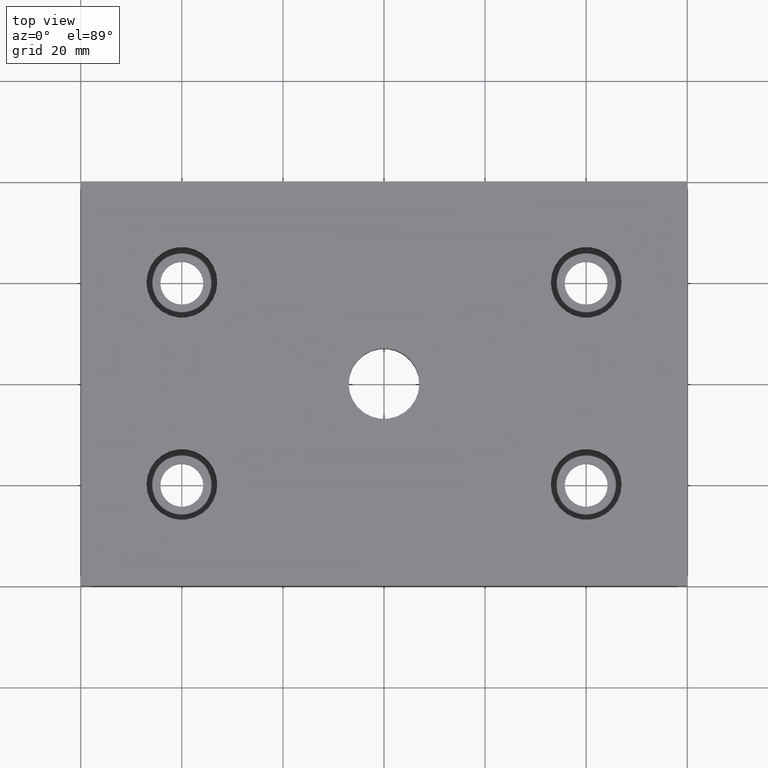
[diagram: clean part render]
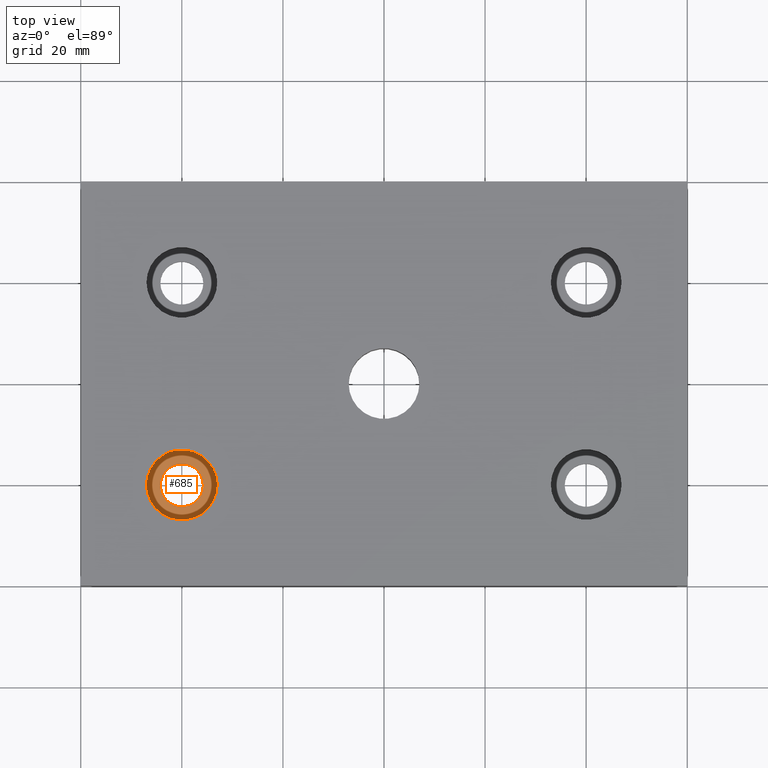
[diagram: same view with one face highlighted and labeled with its STEP entity id]
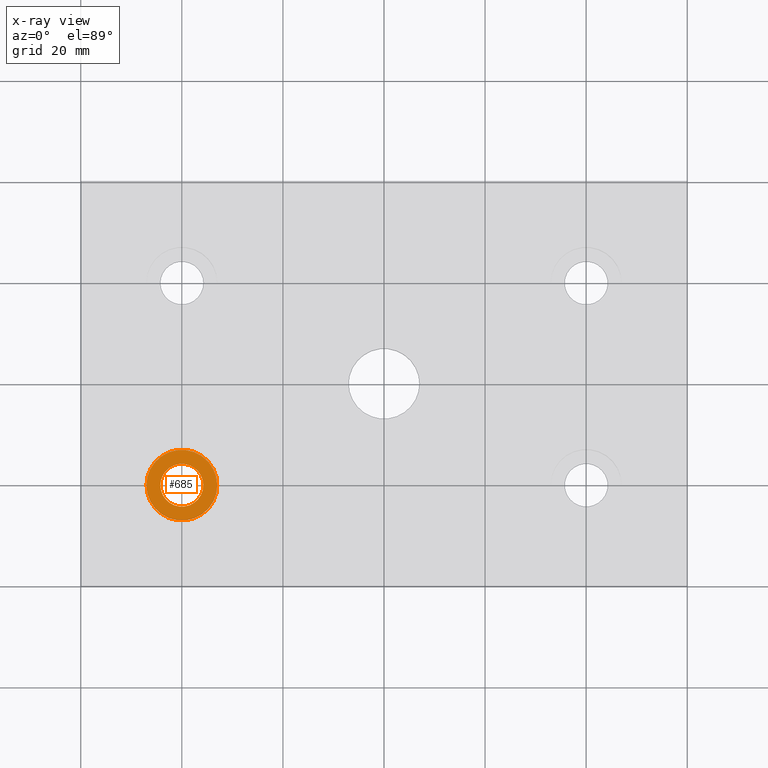
[diagram: x-ray of the same camera — body ghosted, the highlighted face saturated]
A machine part, top view. The second image highlights one B-rep face of the part: STEP entity #685.
The next image is the same camera in x-ray: the body ghosted, the highlighted face saturated — about 0% of this face is hidden behind the body in this view.
In plain terms, the highlighted planar face has unit normal (0, 0, -1).
Its self-contained STEP definition (entity closure, byte-faithful):
#626=CARTESIAN_POINT('',(-35.749991119840161,-19.999995559919626,3.999999999999998));
#627=VERTEX_POINT('',#626);
#637=CARTESIAN_POINT('',(-44.249991119840161,-19.999995559919626,4.0));
#638=VERTEX_POINT('',#637);
#639=CARTESIAN_POINT('',(-39.999991119840161,-19.999995559919626,4.0));
#640=DIRECTION('',(0.0,6.123234E-017,1.0));
#641=DIRECTION('',(1.0,0.0,0.0));
#642=AXIS2_PLACEMENT_3D('',#639,#640,#641);
#643=CIRCLE('',#642,4.250000000000000);
#644=EDGE_CURVE('',#627,#638,#643,.T.);
#646=CARTESIAN_POINT('',(-39.999991119840161,-19.999995559919626,4.0));
#647=DIRECTION('',(0.0,6.123234E-017,1.0));
#648=DIRECTION('',(1.0,0.0,0.0));
#649=AXIS2_PLACEMENT_3D('',#646,#647,#648);
#650=CIRCLE('',#649,4.250000000000000);
#651=EDGE_CURVE('',#638,#627,#650,.T.);
#656=CARTESIAN_POINT('',(-53.999991119840161,-33.999995559919626,4.000000000000001));
#657=DIRECTION('',(0.0,0.0,-1.0));
#658=DIRECTION('',(0.0,1.0,0.0));
#659=AXIS2_PLACEMENT_3D('',#656,#657,#658);
#660=PLANE('',#659);
#661=CARTESIAN_POINT('',(-32.999991119840161,-19.999995559919626,4.0));
#662=VERTEX_POINT('',#661);
#663=CARTESIAN_POINT('',(-46.999991119840161,-19.999995559919626,4.0));
#664=VERTEX_POINT('',#663);
#665=CARTESIAN_POINT('',(-39.999991119840161,-19.999995559919626,4.0));
#666=DIRECTION('',(0.0,6.123234E-017,1.0));
#667=DIRECTION('',(1.0,0.0,0.0));
#668=AXIS2_PLACEMENT_3D('',#665,#666,#667);
#669=CIRCLE('',#668,7.0);
#670=EDGE_CURVE('',#662,#664,#669,.T.);
#671=ORIENTED_EDGE('',*,*,#670,.T.);
#672=CARTESIAN_POINT('',(-39.999991119840161,-19.999995559919626,4.0));
#673=DIRECTION('',(0.0,6.123234E-017,1.0));
#674=DIRECTION('',(1.0,0.0,0.0));
#675=AXIS2_PLACEMENT_3D('',#672,#673,#674);
#676=CIRCLE('',#675,7.0);
#677=EDGE_CURVE('',#664,#662,#676,.T.);
#678=ORIENTED_EDGE('',*,*,#677,.T.);
#679=EDGE_LOOP('',(#671,#678));
#680=FACE_OUTER_BOUND('',#679,.T.);
#681=ORIENTED_EDGE('',*,*,#651,.F.);
#682=ORIENTED_EDGE('',*,*,#644,.F.);
#683=EDGE_LOOP('',(#681,#682));
#684=FACE_BOUND('',#683,.T.);
#685=ADVANCED_FACE('',(#680,#684),#660,.F.);